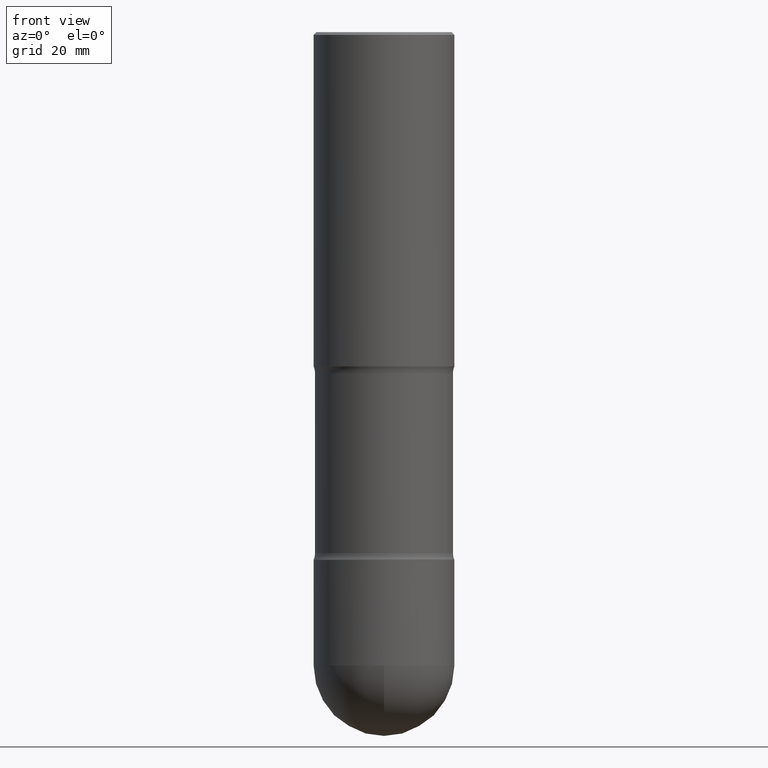
[diagram: clean part render]
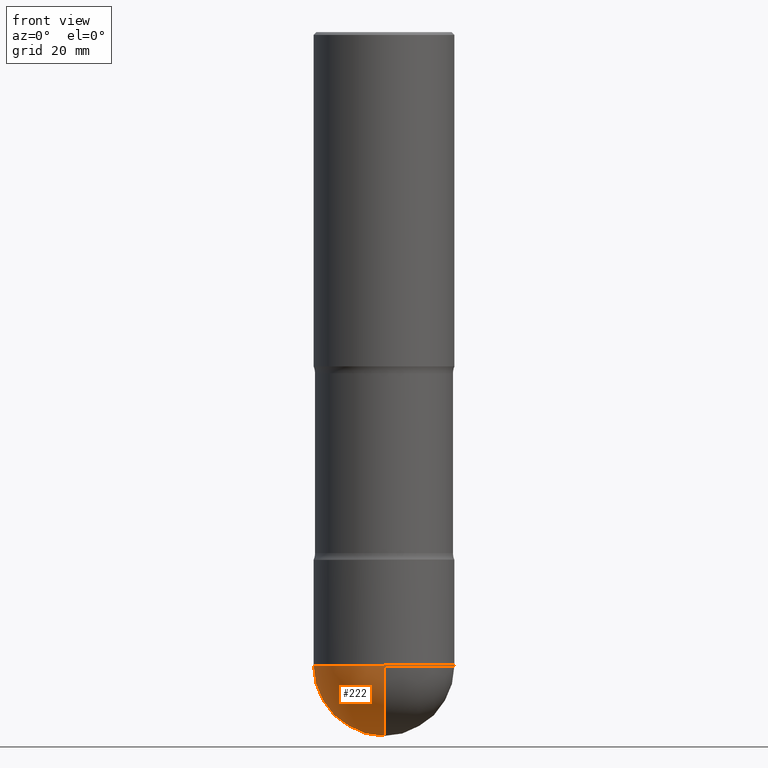
[diagram: same view with one face highlighted and labeled with its STEP entity id]
A machine part, front view. The second image highlights one B-rep face of the part: STEP entity #222.
In plain terms, the highlighted spherical surface has radius 12.7 mm.
Its self-contained STEP definition (entity closure, byte-faithful):
#3 = AXIS2_PLACEMENT_3D ( 'NONE', #87, #133, #352 ) ;
#8 = CARTESIAN_POINT ( 'NONE',  ( -0.4999999999999993339, -1.084964684392748411E-14, -4.499999999999999112 ) ) ;
#23 = VERTEX_POINT ( 'NONE', #170 ) ;
#27 = ORIENTED_EDGE ( 'NONE', *, *, #453, .F. ) ;
#33 = DIRECTION ( 'NONE',  ( -6.982962677686265922E-15, -1.000000000000000000, 0.000000000000000000 ) ) ;
#50 = EDGE_CURVE ( 'NONE', #437, #23, #140, .T. ) ;
#87 = CARTESIAN_POINT ( 'NONE',  ( 1.100460962783311244E-28, -1.571166602479415374E-14, -4.499999999999999112 ) ) ;
#108 = EDGE_LOOP ( 'NONE', ( #499, #506, #551, #27 ) ) ;
#112 = VERTEX_POINT ( 'NONE', #373 ) ;
#133 = DIRECTION ( 'NONE',  ( -2.445468806185136597E-29, 3.491481338843145583E-15, 1.000000000000000000 ) ) ;
#140 = CIRCLE ( 'NONE', #3, 0.4999999999999993339 ) ;
#143 = EDGE_CURVE ( 'NONE', #112, #23, #356, .T. ) ;
#153 = SPHERICAL_SURFACE ( 'NONE', #313, 0.4999999999999998335 ) ;
#158 = FACE_OUTER_BOUND ( 'NONE', #108, .T. ) ;
#163 = CARTESIAN_POINT ( 'NONE',  ( 1.087633468445620528E-28, -1.589536304466625962E-14, -4.500000000000000000 ) ) ;
#170 = CARTESIAN_POINT ( 'NONE',  ( -3.491481338843020943E-15, -0.5000000000000154321, -4.499999999999998224 ) ) ;
#173 = AXIS2_PLACEMENT_3D ( 'NONE', #549, #435, #375 ) ;
#222 = ADVANCED_FACE ( 'NONE', ( #158 ), #153, .T. ) ;
#241 = CARTESIAN_POINT ( 'NONE',  ( 1.087633468445620528E-28, -1.589536304466625962E-14, -4.500000000000000000 ) ) ;
#245 = CARTESIAN_POINT ( 'NONE',  ( 3.552713678800606637E-15, 0.4999999999999837352, -4.500000000000000888 ) ) ;
#250 = VERTEX_POINT ( 'NONE', #245 ) ;
#291 = DIRECTION ( 'NONE',  ( 1.000000000000000000, -6.982962677686265922E-15, 4.883557194083112901E-29 ) ) ;
#313 = AXIS2_PLACEMENT_3D ( 'NONE', #163, #291, #411 ) ;
#327 = DIRECTION ( 'NONE',  ( -1.000000000000000000, 6.982962677686265922E-15, -4.883557194083112340E-29 ) ) ;
#352 = DIRECTION ( 'NONE',  ( 1.000000000000000000, -6.982962677686264344E-15, 0.000000000000000000 ) ) ;
#356 = CIRCLE ( 'NONE', #399, 0.4999999999999998335 ) ;
#373 = CARTESIAN_POINT ( 'NONE',  ( 1.207768993031928718E-28, -1.767171988406651324E-14, -5.000000000000000000 ) ) ;
#375 = DIRECTION ( 'NONE',  ( 7.105427357601001070E-15, 1.000000000000000000, 0.000000000000000000 ) ) ;
#399 = AXIS2_PLACEMENT_3D ( 'NONE', #241, #327, #33 ) ;
#410 = CARTESIAN_POINT ( 'NONE',  ( 1.100460962783311244E-28, -1.571166602479415374E-14, -4.499999999999999112 ) ) ;
#411 = DIRECTION ( 'NONE',  ( -6.982962677686265922E-15, -1.000000000000000000, 3.278217592397116651E-15 ) ) ;
#435 = DIRECTION ( 'NONE',  ( 1.000000000000000000, -7.105427357601001070E-15, 4.926315508542082329E-29 ) ) ;
#437 = VERTEX_POINT ( 'NONE', #8 ) ;
#440 = AXIS2_PLACEMENT_3D ( 'NONE', #410, #489, #455 ) ;
#453 = EDGE_CURVE ( 'NONE', #250, #437, #524, .T. ) ;
#455 = DIRECTION ( 'NONE',  ( 1.000000000000000000, -6.982962677686264344E-15, 0.000000000000000000 ) ) ;
#489 = DIRECTION ( 'NONE',  ( -2.445468806185136597E-29, 3.491481338843145583E-15, 1.000000000000000000 ) ) ;
#499 = ORIENTED_EDGE ( 'NONE', *, *, #566, .F. ) ;
#506 = ORIENTED_EDGE ( 'NONE', *, *, #143, .T. ) ;
#524 = CIRCLE ( 'NONE', #440, 0.4999999999999993339 ) ;
#529 = CIRCLE ( 'NONE', #173, 0.4999999999999998335 ) ;
#549 = CARTESIAN_POINT ( 'NONE',  ( 1.087633468445620528E-28, -1.589536304466625962E-14, -4.500000000000000000 ) ) ;
#551 = ORIENTED_EDGE ( 'NONE', *, *, #50, .F. ) ;
#566 = EDGE_CURVE ( 'NONE', #112, #250, #529, .T. ) ;